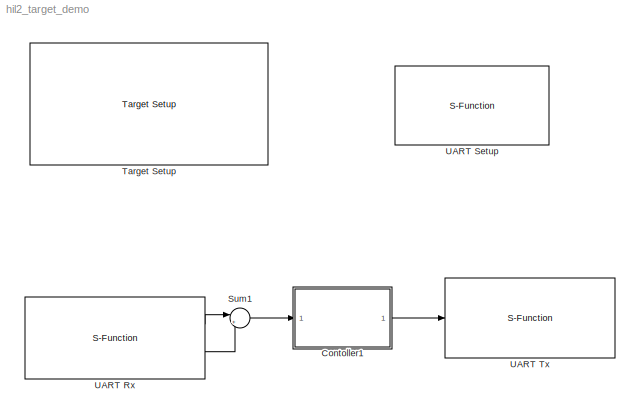
MODEL hil2_target_demo
KIND model
CONFIG PreLoadFcn = waijung.modelPreload; % Required for working with Waijung Blockset. Do not remove.
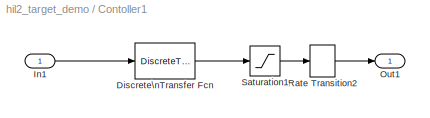
BLOCK [SubSystem] Contoller1
  FunctionWithSeparateData = off
  MaskHideContents = off
  MinAlgLoopOccurrences = off
  Opaque = off
  Ports = [1, 1]
  PropExecContextOutsideSubsystem = off
  RTWSystemCode = Auto
  RequestExecContextInheritance = off
BLOCK [DiscreteTransferFcn] Contoller1/Discrete\nTransfer Fcn
  Denominator = [1 -1]
  Numerator = [0.2 -0.195]
  SampleTime = -1
BLOCK [Inport] Contoller1/In1
  IconDisplay = Port number
BLOCK [Outport] Contoller1/Out1
  IconDisplay = Port number
BLOCK [RateTransition] Contoller1/Rate Transition2
BLOCK [Saturate] Contoller1/Saturation1
  LinearizeAsGain = off
  LowerLimit = -100
  OutDataType = fixdt(1, 16)
  OutScaling = 2^0
  UpperLimit = 100
  ZeroCross = off
BLOCK [Sum] Sum1
  IconShape = round
  InputSameDT = off
  Inputs = |+-
  OutDataType = fixdt(1, 16)
  OutDataTypeMode = Inherit via internal rule
  OutDataTypeStr = Inherit: Inherit via internal rule
  OutScaling = 2^0
  Ports = [2, 1]
  SaturateOnIntegerOverflow = off
BLOCK [Reference] Target Setup  REF=stm32f4_device_config_lib/Target Setup
  Ports = []
  Priority = 100
  SourceBlock = stm32f4_device_config_lib/Target Setup
  SourceType = stm32f4_target_setup
  assemblercontrolstr = $(patsubst %, -I%, .) -mcpu=cortex-m4 -mthumb -mthumb-interwork -mfloat-abi=hard -mfpu=fpv4-sp-d16 -ffast-math -Wall -Wextra -Ofast -Wa,-amhls=$(<:.s=.lst) -D__STACK_SIZE=$(STACK_SIZE) -D__HEAP_SIZE=$(HEAP_SIZE)
  blockid = TargetSetup
  clockconfig = HSEOSC-8MHz
  compiler = GNU ARM
  compilercontrolstr = $(patsubst %, -I%, .) -mcpu=cortex-m4 -mthumb -mthumb-interwork -mfloat-abi=hard -mfpu=fpv4-sp-d16 -ffast-math -Wall -Wextra -Ofast
  editctrlstr = on
  enableautocompiledownload = on
  execprofile = None
  flashlength = 1024k
  flashorigin = 0x8000000
  fullchiperase = off
  hclk = 168000000
  heapsize = 0x2000
  hseval = 8000000
  lastprofileruart = 3
  linkercontrolstr = -T$(LD_SCRIPT) -g -Wl,-Map=$(MAP),--cref,--no-warn-mismatch -mcpu=cortex-m4 -mthumb -mthumb-interwork -mfloat-abi=hard -mfpu=fpv4-sp-d16 -specs=nosys.specs
  manualsetsampletime = off
  mcu = STM32F417IG (LQFP176)
  mcustr = STM32F417IG
  previous_compiler = GNU ARM
  profilerbaud = 500000
  profilerinitstr = 0.01,168000000,1680000,500000,0
  profilertxpin = D8
  profileruart = 3
  programmerinterface = ST-Link
  ramlength = 128k
  ramorigin = 0x20000000
  runafterdownload = on
  sampletime = 0.01
  showmemoryconfiguration = off
  stacksize = 0x2000
  system_stm32f4xx_c_path = <path>
  systickreloadvalue = 1680000
  useextram = off
BLOCK [S-Function] UART Rx
  EnableBusSupport = off
  FunctionName = stm32f4_usart
  MaskCallbackString = stm32f4_usart_callback('configuration');|stm32f4_usart_callback('uartmodule');|stm32f4_usart_callback('baudrate');||||||stm32f4_usart_callback('flowcontrol');|||stm32f4_usart_callback('advanceoptions');|||stm32f4_usart_callback('transfer');|stm32f4_usart_callback('packetmode');|stm32f4_usart_callback('binheader');|stm32f4_usart_callback('binterminator');|stm32f4_usart_callback('porttype');|stm32f4...<+572ch>  <repeated x3 — deduplicated; at blocks: UART Rx, UART Setup, UART Tx>
  MaskDescription = Data type for Ascii format\n%u, %i, %d, %o, %x: uint32\n%e, %g, %f: single\n%c: int8
  MaskDisplay = text(0.05, 0.5, 'Module: USART3_Rx\\nPacket: Binary\\nTransfer: Blocking\\nTs (sec): 0.005','ver','middle','hor','left'); port_label('output', 1,'double'); port_label('output', 2,'double');
  MaskEnableString = on,on,on,on,on,on,on,on,on,off,off,on,on,on,on,on,on,on,on,on,on,on,on,on,on,on,on,on,on,on,on,on,on,on,on,on,on,on,on,off,off,on,on
  MaskHelp = web(fullfile(waijungdocroot,'stm32f4_usart_rx.htm'), '-browser')
  MaskIconFrame = on
  MaskIconOpaque = on
  MaskIconRotate = none
  MaskIconUnits = normalized
  MaskInitialization = stm32f4_usart_callback('init');
  MaskPortRotate = default
  MaskPromptString = Configuration|UART Module|Baud rate (bps)|Data bits|Parity|Stop bit|Tx Pin|Rx Pin|Hardware flow control|HW Flow control, CTS Pin|HW Flow control, RTS Pin|Advance options|Rx buffer size (bytes)|Tx buffer size (bytes)|Transfer|Packet mode|Binary header (example: '7E 7E')|Binary terminator (example: '03 03')|Number of data port, type DOUBLE|Number of data port, type SINGLE|Number of data port, type I...<+457ch>  <repeated x3 — deduplicated; at blocks: UART Rx, UART Setup, UART Tx>
  MaskSelfModifiable = on
  MaskStyleString = popup(Setup|Tx|Rx),popup(1|2|3|4|5|6),edit,popup(8),popup(No|Odd|Even),popup(0.5|1|1.5|2),popup(Not used|A9|B6),popup(Not used|A10|B7),popup(None|RTS|CTS|RTS/CTS),popup(Not used|A11),popup(Not used|A12),checkbox,popup(16|32|64|128|256|512|1024|2048),popup(16|32|64|128|256|512|1024|2048),popup(Blocking|Non-Blocking),popup(Ascii|Binary|String Buffer),edit,edit,edit,edit,edit,edit,edit,edit,edit,edit...<+244ch>
  MaskTabNameString = ,,,,,,,,,,,,,,,,,,,,,,,,,,,,,,,,,,,,,,,,,,
  MaskToolTipString = on,on,on,on,on,on,on,on,on,on,on,on,on,on,on,on,on,on,on,on,on,on,on,on,on,on,on,on,on,on,on,on,on,on,on,on,on,on,on,on,on,on,on
  MaskTunableValueString = off,off,off,off,off,off,off,off,off,off,off,off,off,off,off,off,off,off,off,off,off,off,off,off,off,off,off,off,off,off,off,off,off,off,off,off,off,off,off,off,off,off,off
  MaskType = stm32f4_usart
  MaskValueString = Rx|3|115200|8|No|1|Not used|Not used|None|Not used|Not used|off|512|512|Blocking|Binary|'7E 7E'|'03 03'|2|0|0|0|0|0|0|0|'value=%d,%f'|CRLF (0x0D 0x0A - \"<path>")|LF (0x0A - \"\\n\")|<empty>||[0]|[2  0 0]|[2 126  126]|[2 3  3]|16|'value=%d,%f\\r\\n'|[2 13 10]|.005|0.005|UARTRx|[ \"dummy\", \"0\", \"*\", \"*\", \"0\", \"*\", \"*\", \"0\", \"*\", \"*\", \"0\", \"*\", \"*\", \"1\", \"4\", \"3\", \"1...<+107ch>
  MaskVarAliasString = ,,,,,,,,,,,,,,,,,,,,,,,,,,,,,,,,,,,,,,,,,,
  MaskVariables = configuration=&1;uartmodule=&2;baudrate=@3;databits=@4;parity=&5;stopbit=&6;remaptxpin=&7;remaprxpin=&8;flowcontrol=&9;remapctspin=&10;remaprtspin=&11;advanceoptions=@12;rxbuffersize=@13;txbuffersize=@14;transfer=&15;packetmode=&16;binheader=&17;binterminator=&18;porttype_double=@19;porttype_single=@20;porttype_int8=@21;porttype_uint8=@22;porttype_int16=@23;porttype_uint16=@24;porttype_int32=@25;p...<+306ch>  <repeated x3 — deduplicated; at blocks: UART Rx, UART Setup, UART Tx>
  MaskVisibilityString = off,on,off,off,off,off,off,off,off,off,off,off,off,off,on,on,on,on,on,on,on,on,on,on,on,on,off,off,off,off,off,off,off,off,off,off,off,off,on,off,off,off,off
  Parameters = configuration,uartmodule,transfer,baudrate,inputtype,outputtype,confstr,binheaderarray,binterminatorarray,asciiheader,asciiterminator,bindatalength,packetmode,varname,sampletime,sampletimestr,blockid  <repeated x3 — deduplicated; at blocks: UART Rx, UART Setup, UART Tx>
  Ports = [0, 2]
  Priority = 1
BLOCK [S-Function] UART Setup
  EnableBusSupport = off
  FunctionName = stm32f4_usart
  MaskDescription = Default STM32F4DISCOVERY + aMG F4 Connect 2 + aMG USB Converter N2 settings use\n\nUSART3, Tx D8, Rx D9 and USB Serial Converter A.
  MaskDisplay = text(0.5, 0.5, 'Module: USART3_Setup\\nBaud (Bps): 115200\\nDMA Buffer: 512/512\\nTx/Rx Pin: D8/D9','ver','middle','hor','center');
  MaskEnableString = on,on,on,on,on,on,on,on,on,off,off,on,on,on,on,on,on,on,on,on,on,on,on,on,on,on,on,on,on,on,on,on,on,on,on,on,on,on,on,off,off,on,on
  MaskHelp = web(fullfile(waijungdocroot,'stm32f4_usart_setup.htm'), '-browser')
  MaskIconFrame = on
  MaskIconOpaque = on
  MaskIconRotate = none
  MaskIconUnits = normalized
  MaskInitialization = stm32f4_usart_callback('init');
  MaskPortRotate = default
  MaskSelfModifiable = on
  MaskStyleString = popup(Setup|Tx|Rx),popup(1|2|3|4|5|6),edit,popup(8),popup(No|Odd|Even),popup(0.5|1|1.5|2),popup(Not used|B10|C10|D8),popup(Not used|B11|C11|D9),popup(None|RTS|CTS|RTS/CTS),popup(Not used|B13|D11),popup(Not used|B14|D12),checkbox,popup(16|32|64|128|256|512|1024|2048),popup(16|32|64|128|256|512|1024|2048),popup(Blocking|Non-Blocking),popup(Ascii|Binary|String Buffer),edit,edit,edit,edit,edit,edit,ed...<+261ch>
  MaskTabNameString = ,,,,,,,,,,,,,,,,,,,,,,,,,,,,,,,,,,,,,,,,,,
  MaskToolTipString = on,on,on,on,on,on,on,on,on,on,on,on,on,on,on,on,on,on,on,on,on,on,on,on,on,on,on,on,on,on,on,on,on,on,on,on,on,on,on,on,on,on,on
  MaskTunableValueString = off,off,off,off,off,off,off,off,off,off,off,off,off,off,off,off,off,off,off,off,off,off,off,off,off,off,off,off,off,off,off,off,off,off,off,off,off,off,off,off,off,off,off
  MaskType = stm32f4_usart
  MaskValueString = Setup|3|115200|8|No|1|D8|D9|None|Not used|Not used|off|512|512|Blocking|Ascii|'7E 7E'|'03 03'|1|0|1|0|0|0|0|0|'%d,%f'|CRLF (0x0D 0x0A - \"<path>")|CR (0x0D - \"\\r\")|<empty>||[0]|[0]|[0]|[0]|0|''|[0]|-1|0.005|UARTSetup|[ \"dummy\", \"1\", \"D\", \"8\", \"1\", \"D\", \"9\", \"0\", \"*\", \"*\", \"0\", \"*\", \"*\", \"1\", \"4\", \"3\", \"1\", \"4\", \"1\", \"512\", \"512\", \"1\", \"3\", \"115200...<+49ch>
  MaskVarAliasString = ,,,,,,,,,,,,,,,,,,,,,,,,,,,,,,,,,,,,,,,,,,
  MaskVisibilityString = off,on,on,on,on,on,on,on,on,on,on,on,off,off,off,off,off,off,off,off,off,off,off,off,off,off,off,off,off,off,off,off,off,off,off,off,off,off,off,off,off,off,off
  Ports = []
  Priority = 1
BLOCK [S-Function] UART Tx
  EnableBusSupport = off
  FunctionName = stm32f4_usart
  MaskDescription = Data type for Ascii format\n%u, %i, %d, %o, %x: uint32\n%e, %g, %f: single\n%c: int8
  MaskDisplay = text(0.95, 0.5, 'Module: USART3_Tx\\nPacket: Binary\\nTransfer: Blocking\\nTs (sec): 0.005','ver','middle','hor','right'); port_label('input', 1,'double');
  MaskEnableString = on,on,on,on,on,on,on,on,on,off,off,on,on,on,on,on,on,on,on,on,on,on,on,on,on,on,on,on,on,on,on,on,on,on,on,on,on,on,on,off,off,on,on
  MaskHelp = web(fullfile(waijungdocroot,'stm32f4_usart_tx.htm'), '-browser')
  MaskIconFrame = on
  MaskIconOpaque = on
  MaskIconRotate = none
  MaskIconUnits = normalized
  MaskInitialization = stm32f4_usart_callback('init');
  MaskPortRotate = default
  MaskSelfModifiable = on
  MaskStyleString = popup(Setup|Tx|Rx),popup(1|2|3|4|5|6),edit,popup(8),popup(No|Odd|Even),popup(0.5|1|1.5|2),popup(Not used|A9|B6),popup(Not used|A10|B7),popup(None|RTS|CTS|RTS/CTS),popup(Not used|A11),popup(Not used|A12),checkbox,popup(16|32|64|128|256|512|1024|2048),popup(16|32|64|128|256|512|1024|2048),popup(Blocking|Non-Blocking),popup(Ascii|Binary|String Buffer),edit,edit,edit,edit,edit,edit,edit,edit,edit,edit...<+244ch>
  MaskTabNameString = ,,,,,,,,,,,,,,,,,,,,,,,,,,,,,,,,,,,,,,,,,,
  MaskToolTipString = on,on,on,on,on,on,on,on,on,on,on,on,on,on,on,on,on,on,on,on,on,on,on,on,on,on,on,on,on,on,on,on,on,on,on,on,on,on,on,on,on,on,on
  MaskTunableValueString = off,off,off,off,off,off,off,off,off,off,off,off,off,off,off,off,off,off,off,off,off,off,off,off,off,off,off,off,off,off,off,off,off,off,off,off,off,off,off,off,off,off,off
  MaskType = stm32f4_usart
  MaskValueString = Tx|3|115200|8|No|1|Not used|Not used|None|Not used|Not used|off|512|512|Blocking|Binary|'7E 7E'|'03 03'|1|0|0|0|0|0|0|0|'value=%d,%f'|CRLF (0x0D 0x0A - \"<path>")|CRLF (0x0D 0x0A - \"<path>")|<empty>||[1  0]|[0]|[2 126  126]|[2 3  3]|8|'value=%d,%f\\r\\n'|[2 13 10]|0.005|0.005|UARTTx|[ \"dummy\", \"0\", \"*\", \"*\", \"0\", \"*\", \"*\", \"0\", \"*\", \"*\", \"0\", \"*\", \"*\", \"1\", \"4\", \"...<+115ch>
  MaskVarAliasString = ,,,,,,,,,,,,,,,,,,,,,,,,,,,,,,,,,,,,,,,,,,
  MaskVisibilityString = off,on,off,off,off,off,off,off,off,off,off,off,off,off,on,on,on,on,on,on,on,on,on,on,on,on,off,off,off,off,off,off,off,off,off,off,off,off,on,off,off,off,off
  Ports = [1]
  Priority = 1
LINE Contoller1/Discrete\nTransfer Fcn:1 -> Contoller1/Saturation1:1
LINE Contoller1/In1:1 -> Contoller1/Discrete\nTransfer Fcn:1
LINE Contoller1/Rate Transition2:1 -> Contoller1/Out1:1
LINE Contoller1/Saturation1:1 -> Contoller1/Rate Transition2:1
LINE Contoller1:1 -> UART Tx:1
LINE Sum1:1 -> Contoller1:1
LINE UART Rx:1 -> Sum1:1
LINE UART Rx:2 -> Sum1:2
note: 5 file-system paths scrubbed to <path> (not preserved elsewhere — flat text is the only slx artifact)
